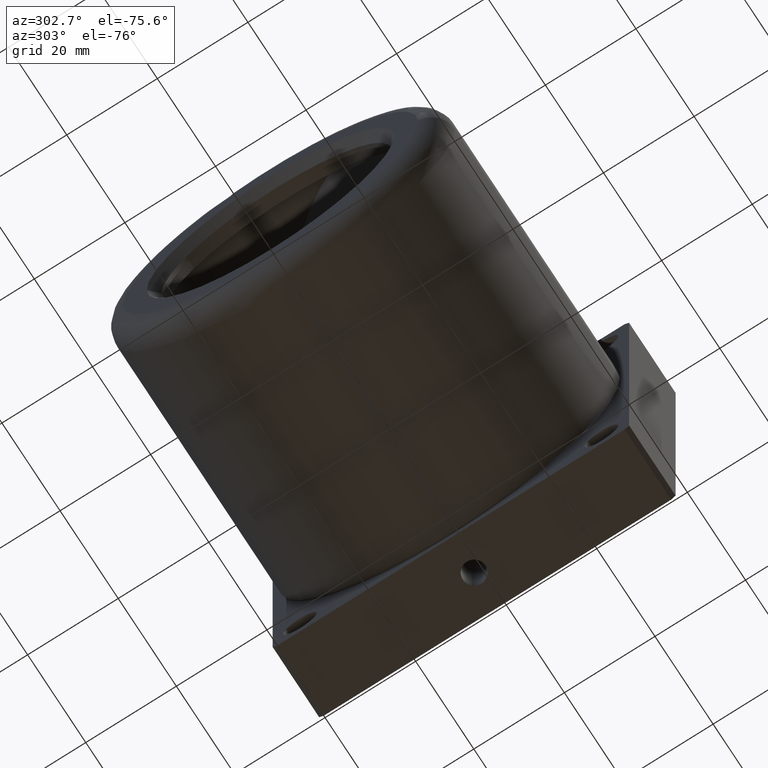
[diagram: clean part render]
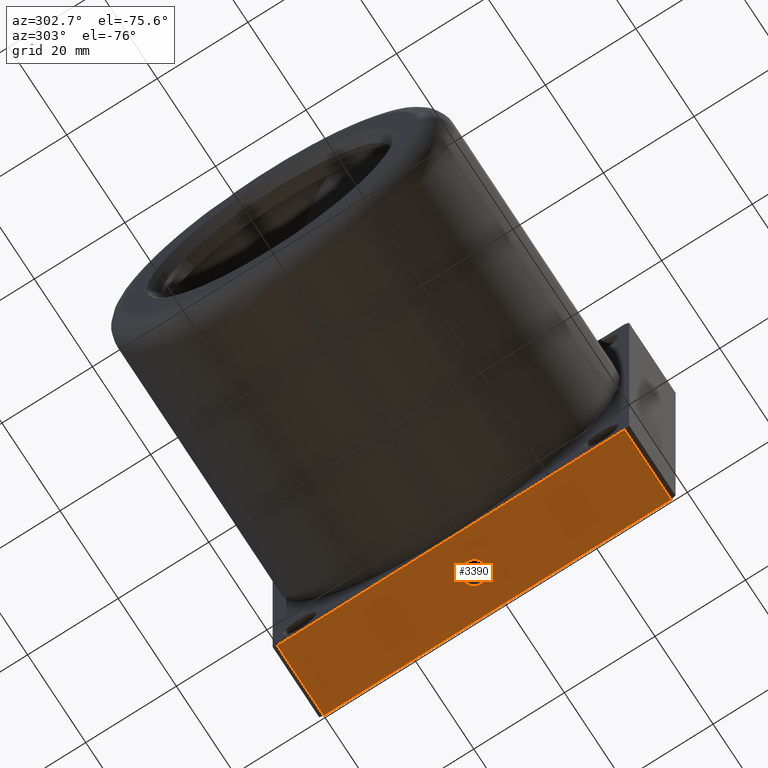
[diagram: same view with one face highlighted and labeled with its STEP entity id]
A machine part, auxiliary view. The second image highlights one B-rep face of the part: STEP entity #3390.
In plain terms, the highlighted planar face has unit normal (0, 0, 1).
Its self-contained STEP definition (entity closure, byte-faithful):
#286 = DIRECTION ( 'NONE',  ( 1.000000000000000000, 0.0000000000000000000, 0.0000000000000000000 ) ) ;
#386 = CARTESIAN_POINT ( 'NONE',  ( -16.00000000000000000, -79.70000000000000300, -39.34999999999998700 ) ) ;
#470 = CIRCLE ( 'NONE', #5612, 2.500000000000000400 ) ;
#555 = EDGE_CURVE ( 'NONE', #5275, #9829, #10640, .T. ) ;
#591 = DIRECTION ( 'NONE',  ( -1.000000000000000000, 0.0000000000000000000, 0.0000000000000000000 ) ) ;
#1131 = CARTESIAN_POINT ( 'NONE',  ( -10.50000000000000000, -118.0500000000000000, -39.34999999999998000 ) ) ;
#1398 = ORIENTED_EDGE ( 'NONE', *, *, #4567, .T. ) ;
#1720 = CARTESIAN_POINT ( 'NONE',  ( -8.000000000000000000, -118.0500000000000000, -39.34999999999998000 ) ) ;
#1787 = VERTEX_POINT ( 'NONE', #4159 ) ;
#1812 = VECTOR ( 'NONE', #591, 1000.000000000000000 ) ;
#2220 = CARTESIAN_POINT ( 'NONE',  ( -16.00000000000000000, -79.70000000000000300, -39.34999999999998700 ) ) ;
#2234 = LINE ( 'NONE', #4840, #10783 ) ;
#2290 = LINE ( 'NONE', #10087, #10832 ) ;
#2403 = CARTESIAN_POINT ( 'NONE',  ( -16.00000000000000000, -78.70000000000000300, -39.34999999999998700 ) ) ;
#2462 = EDGE_CURVE ( 'NONE', #8160, #10285, #9741, .T. ) ;
#2601 = DIRECTION ( 'NONE',  ( 1.000000000000000000, 0.0000000000000000000, 0.0000000000000000000 ) ) ;
#2943 = EDGE_LOOP ( 'NONE', ( #1398, #3827, #5355, #6709 ) ) ;
#3166 = CARTESIAN_POINT ( 'NONE',  ( -5.500000000000000000, -118.0500000000000000, -39.34999999999998000 ) ) ;
#3265 = DIRECTION ( 'NONE',  ( -1.000000000000000000, 0.0000000000000000000, 0.0000000000000000000 ) ) ;
#3390 = ADVANCED_FACE ( 'NONE', ( #5668, #3430 ), #6526, .F. ) ;
#3430 = FACE_OUTER_BOUND ( 'NONE', #2943, .T. ) ;
#3827 = ORIENTED_EDGE ( 'NONE', *, *, #5633, .T. ) ;
#4159 = CARTESIAN_POINT ( 'NONE',  ( -16.00000000000000000, -156.4000000000000100, -39.34999999999997300 ) ) ;
#4411 = EDGE_CURVE ( 'NONE', #10285, #8160, #470, .T. ) ;
#4567 = EDGE_CURVE ( 'NONE', #9829, #4798, #2234, .T. ) ;
#4647 = EDGE_LOOP ( 'NONE', ( #5300, #5759 ) ) ;
#4683 = AXIS2_PLACEMENT_3D ( 'NONE', #2403, #8179, #3265 ) ;
#4798 = VERTEX_POINT ( 'NONE', #9800 ) ;
#4840 = CARTESIAN_POINT ( 'NONE',  ( 0.0000000000000000000, -78.70000000000000300, -39.34999999999998700 ) ) ;
#5183 = DIRECTION ( 'NONE',  ( 0.0000000000000000000, -1.000000000000000000, 1.110223024625155900E-016 ) ) ;
#5275 = VERTEX_POINT ( 'NONE', #2220 ) ;
#5300 = ORIENTED_EDGE ( 'NONE', *, *, #4411, .F. ) ;
#5355 = ORIENTED_EDGE ( 'NONE', *, *, #10150, .F. ) ;
#5389 = DIRECTION ( 'NONE',  ( 0.0000000000000000000, -1.110223024625155900E-016, -1.000000000000000000 ) ) ;
#5612 = AXIS2_PLACEMENT_3D ( 'NONE', #10307, #5389, #286 ) ;
#5633 = EDGE_CURVE ( 'NONE', #4798, #1787, #10402, .T. ) ;
#5655 = CARTESIAN_POINT ( 'NONE',  ( -16.00000000000000000, -156.4000000000000100, -39.34999999999997300 ) ) ;
#5668 = FACE_BOUND ( 'NONE', #4647, .T. ) ;
#5759 = ORIENTED_EDGE ( 'NONE', *, *, #2462, .F. ) ;
#6179 = CARTESIAN_POINT ( 'NONE',  ( 0.0000000000000000000, -79.70000000000000300, -39.34999999999998700 ) ) ;
#6526 = PLANE ( 'NONE',  #4683 ) ;
#6709 = ORIENTED_EDGE ( 'NONE', *, *, #555, .T. ) ;
#6851 = AXIS2_PLACEMENT_3D ( 'NONE', #1720, #7524, #2601 ) ;
#7524 = DIRECTION ( 'NONE',  ( 0.0000000000000000000, -1.110223024625155900E-016, -1.000000000000000000 ) ) ;
#7927 = DIRECTION ( 'NONE',  ( 1.000000000000000000, -0.0000000000000000000, 0.0000000000000000000 ) ) ;
#8160 = VERTEX_POINT ( 'NONE', #1131 ) ;
#8179 = DIRECTION ( 'NONE',  ( 0.0000000000000000000, 1.110223024625155900E-016, 1.000000000000000000 ) ) ;
#9741 = CIRCLE ( 'NONE', #6851, 2.500000000000000400 ) ;
#9800 = CARTESIAN_POINT ( 'NONE',  ( 0.0000000000000000000, -156.4000000000000100, -39.34999999999997300 ) ) ;
#9829 = VERTEX_POINT ( 'NONE', #6179 ) ;
#10087 = CARTESIAN_POINT ( 'NONE',  ( -16.00000000000000000, -78.70000000000000300, -39.34999999999998700 ) ) ;
#10150 = EDGE_CURVE ( 'NONE', #5275, #1787, #2290, .T. ) ;
#10285 = VERTEX_POINT ( 'NONE', #3166 ) ;
#10307 = CARTESIAN_POINT ( 'NONE',  ( -8.000000000000000000, -118.0500000000000000, -39.34999999999998000 ) ) ;
#10357 = VECTOR ( 'NONE', #7927, 1000.000000000000000 ) ;
#10402 = LINE ( 'NONE', #5655, #1812 ) ;
#10595 = DIRECTION ( 'NONE',  ( 0.0000000000000000000, -1.000000000000000000, 1.110223024625155900E-016 ) ) ;
#10640 = LINE ( 'NONE', #386, #10357 ) ;
#10783 = VECTOR ( 'NONE', #10595, 1000.000000000000000 ) ;
#10832 = VECTOR ( 'NONE', #5183, 1000.000000000000000 ) ;